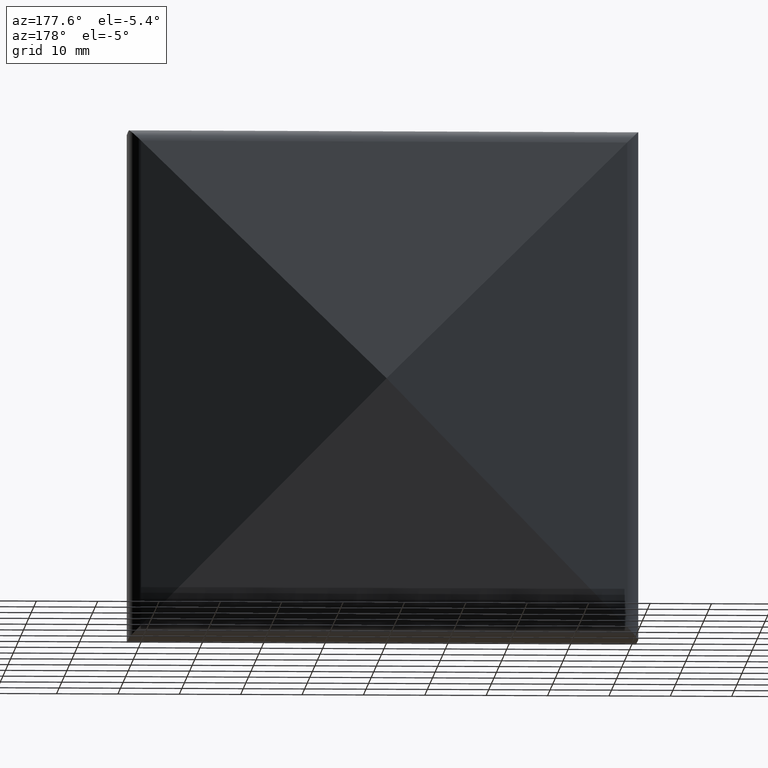
[diagram: clean part render]
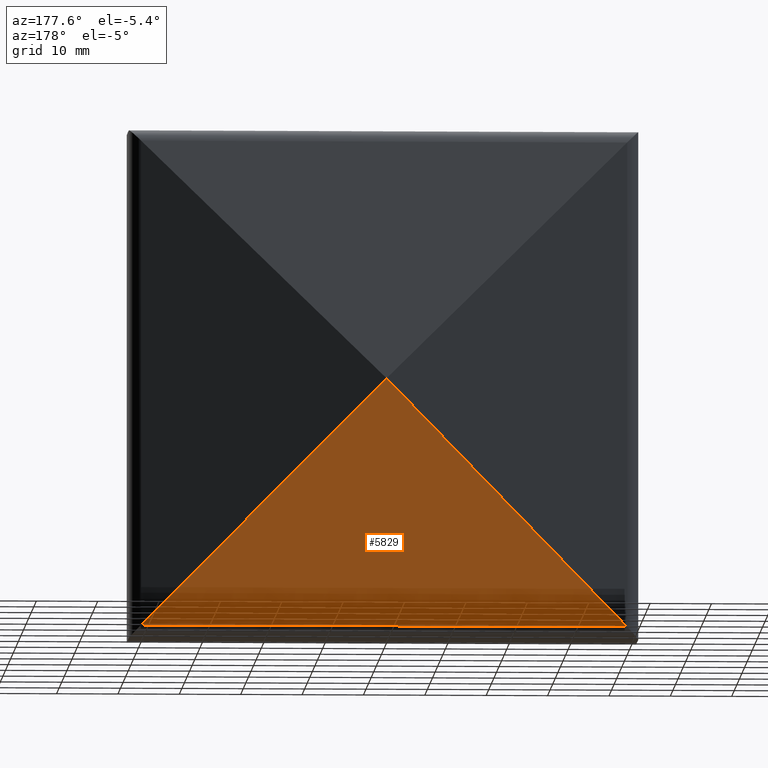
[diagram: same view with one face highlighted and labeled with its STEP entity id]
A machine part, auxiliary view. The second image highlights one B-rep face of the part: STEP entity #5829.
In plain terms, the highlighted planar face has unit normal (-0, 0.9722, -0.2343).
Its self-contained STEP definition (entity closure, byte-faithful):
#631 = ORIENTED_EDGE ( 'NONE', *, *, #13181, .T. ) ;
#928 = LINE ( 'NONE', #11476, #11243 ) ;
#1970 = CARTESIAN_POINT ( 'NONE',  ( -41.50000000000004300, 10.46138374417017200, -39.58580565524131600 ) ) ;
#2021 = CARTESIAN_POINT ( 'NONE',  ( -41.50000000000004300, 10.46138374417017200, -39.58580565524131600 ) ) ;
#2224 = VERTEX_POINT ( 'NONE', #5475 ) ;
#2414 = CARTESIAN_POINT ( 'NONE',  ( -40.51588547771053300, 10.23720394129750100, -40.51588547771051200 ) ) ;
#2558 = VECTOR ( 'NONE', #10861, 1000.000000000000000 ) ;
#2825 = CARTESIAN_POINT ( 'NONE',  ( -39.58580565524133700, 10.46138374417017200, -39.58580565524131600 ) ) ;
#2942 = DIRECTION ( 'NONE',  ( -1.040599882247295000E-016, 0.9721589774753729400, -0.2343222620965350600 ) ) ;
#3302 = EDGE_CURVE ( 'NONE', #11623, #10142, #13383, .T. ) ;
#4347 = EDGE_CURVE ( 'NONE', #11623, #2224, #6964, .T. ) ;
#4529 = DIRECTION ( 'NONE',  ( 0.6970550805537236700, 0.1680131820676096000, 0.6970550805537234500 ) ) ;
#5047 = DIRECTION ( 'NONE',  ( 0.0000000000000000000, 0.2343222620965350600, 0.9721589774753729400 ) ) ;
#5392 = CARTESIAN_POINT ( 'NONE',  ( -0.02343222620965201800, 19.99721589774754100, -0.02343222620965440200 ) ) ;
#5475 = CARTESIAN_POINT ( 'NONE',  ( 39.58580565524141500, 10.46138374417017000, -39.58580565524135900 ) ) ;
#5753 = CARTESIAN_POINT ( 'NONE',  ( 0.02343222620965201800, 19.99721589774754100, -0.02343222620965442300 ) ) ;
#5829 = ADVANCED_FACE ( 'NONE', ( #7112 ), #12663, .T. ) ;
#6038 = ORIENTED_EDGE ( 'NONE', *, *, #9348, .T. ) ;
#6299 = AXIS2_PLACEMENT_3D ( 'NONE', #2021, #2942, #5047 ) ;
#6964 = LINE ( 'NONE', #1970, #13295 ) ;
#7062 = ORIENTED_EDGE ( 'NONE', *, *, #3302, .T. ) ;
#7112 = FACE_OUTER_BOUND ( 'NONE', #11230, .T. ) ;
#7735 = VECTOR ( 'NONE', #4529, 1000.000000000000100 ) ;
#8107 = ORIENTED_EDGE ( 'NONE', *, *, #4347, .F. ) ;
#8670 = CARTESIAN_POINT ( 'NONE',  ( -41.50000000000003600, 19.99721589774754100, -0.02343222620963598300 ) ) ;
#9348 = EDGE_CURVE ( 'NONE', #12908, #2224, #928, .T. ) ;
#10090 = LINE ( 'NONE', #8670, #2558 ) ;
#10142 = VERTEX_POINT ( 'NONE', #5392 ) ;
#10226 = DIRECTION ( 'NONE',  ( 0.6970550805537238900, -0.1680131820676094600, -0.6970550805537233400 ) ) ;
#10861 = DIRECTION ( 'NONE',  ( 1.000000000000000000, -0.0000000000000000000, -4.440892098500625700E-016 ) ) ;
#11230 = EDGE_LOOP ( 'NONE', ( #6038, #8107, #7062, #631 ) ) ;
#11243 = VECTOR ( 'NONE', #10226, 1000.000000000000100 ) ;
#11476 = CARTESIAN_POINT ( 'NONE',  ( 20.17630693159481600, 15.13971080019932500, -20.17630693159478000 ) ) ;
#11623 = VERTEX_POINT ( 'NONE', #2825 ) ;
#12663 = PLANE ( 'NONE',  #6299 ) ;
#12908 = VERTEX_POINT ( 'NONE', #5753 ) ;
#13181 = EDGE_CURVE ( 'NONE', #10142, #12908, #10090, .T. ) ;
#13295 = VECTOR ( 'NONE', #13637, 1000.000000000000000 ) ;
#13383 = LINE ( 'NONE', #2414, #7735 ) ;
#13637 = DIRECTION ( 'NONE',  ( 1.000000000000000000, -0.0000000000000000000, -4.440892098500625700E-016 ) ) ;